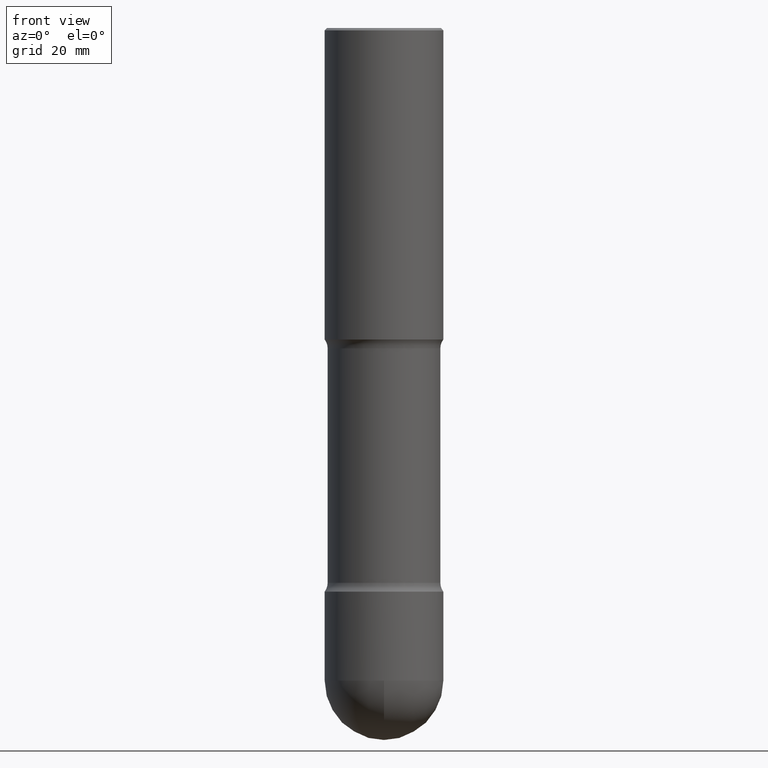
[diagram: clean part render]
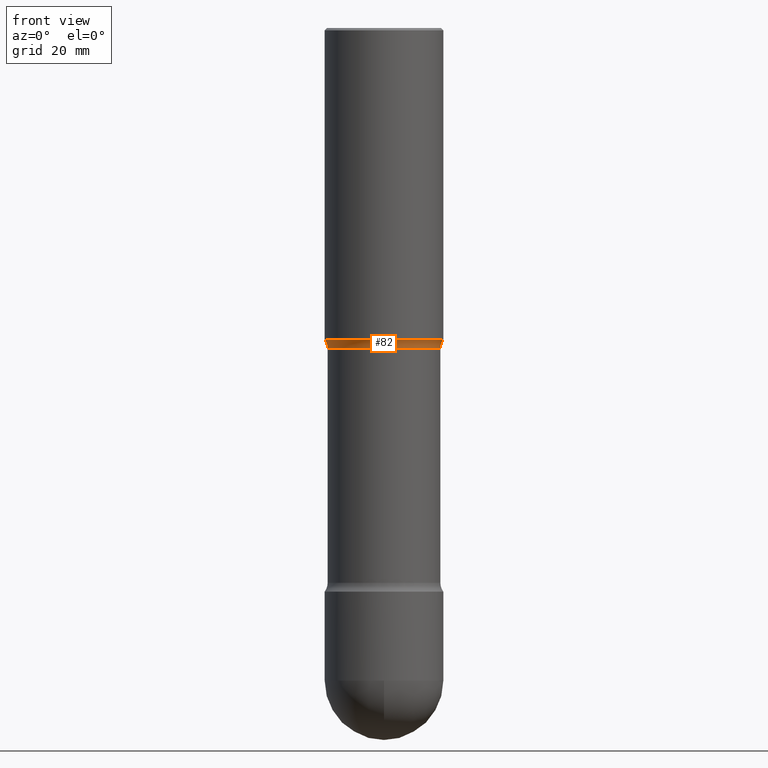
[diagram: same view with one face highlighted and labeled with its STEP entity id]
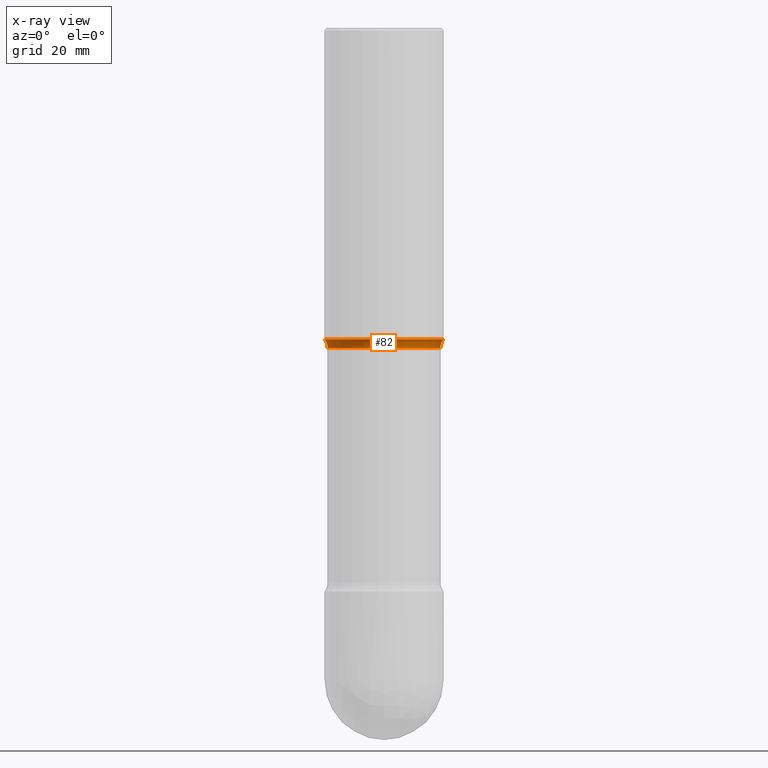
[diagram: x-ray of the same camera — body ghosted, the highlighted face saturated]
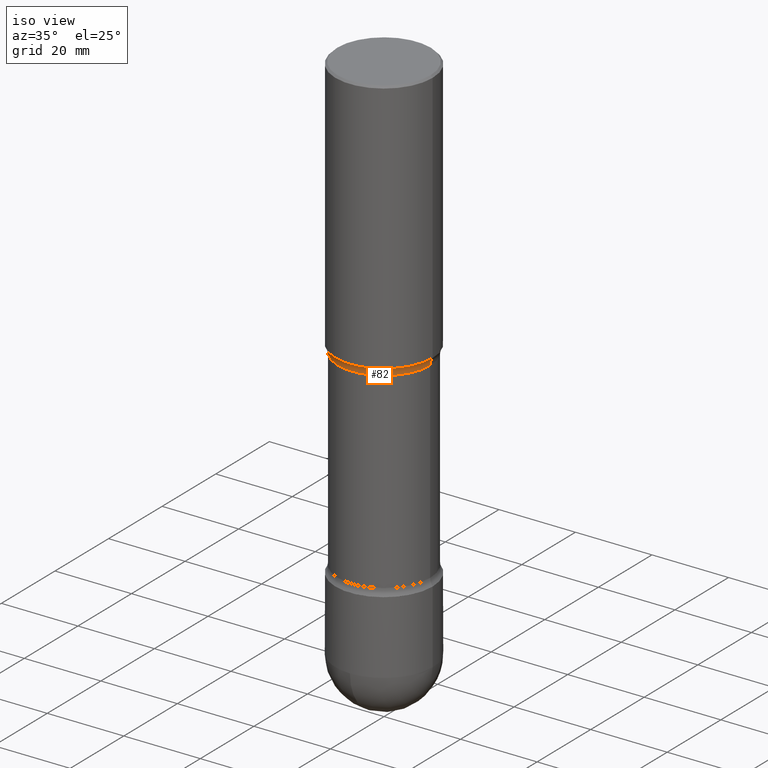
[diagram: same view with one face highlighted and labeled with its STEP entity id]
A machine part, front view. The second image highlights one B-rep face of the part: STEP entity #82.
The next image is the same camera in x-ray: the body ghosted, the highlighted face saturated — about 0% of this face is hidden behind the body in this view.
A second angle (iso view) of the same face is appended — the face is thin or edge-on in the first view.
In plain terms, the highlighted toroidal blend (fillet) surface has major radius 15.24 mm and minor (blend) radius 3.175 mm.
Its self-contained STEP definition (entity closure, byte-faithful):
#14 = CIRCLE ( 'NONE', #451, 0.1249999999999883565 ) ;
#19 = DIRECTION ( 'NONE',  ( -6.982962677686266711E-15, -1.000000000000000000, 3.491481338843145583E-15 ) ) ;
#35 = EDGE_CURVE ( 'NONE', #70, #428, #373, .T. ) ;
#54 = DIRECTION ( 'NONE',  ( -1.000000000000000000, 6.982962677686266711E-15, -4.883557194083113462E-29 ) ) ;
#70 = VERTEX_POINT ( 'NONE', #161 ) ;
#71 = CARTESIAN_POINT ( 'NONE',  ( 6.419355616235991414E-29, -9.165138514463269234E-15, -2.625000000000003109 ) ) ;
#82 = ADVANCED_FACE ( 'NONE', ( #107 ), #164, .F. ) ;
#105 = ORIENTED_EDGE ( 'NONE', *, *, #149, .T. ) ;
#107 = FACE_OUTER_BOUND ( 'NONE', #337, .T. ) ;
#110 = ORIENTED_EDGE ( 'NONE', *, *, #176, .T. ) ;
#114 = AXIS2_PLACEMENT_3D ( 'NONE', #226, #218, #294 ) ;
#135 = CIRCLE ( 'NONE', #489, 0.1249999999999883565 ) ;
#142 = CARTESIAN_POINT ( 'NONE',  ( -0.4749999999999993672, -6.110092342975520448E-15, -2.700000000000000178 ) ) ;
#149 = EDGE_CURVE ( 'NONE', #543, #248, #303, .T. ) ;
#155 = DIRECTION ( 'NONE',  ( -1.000000000000000000, 6.982962677686266711E-15, 0.000000000000000000 ) ) ;
#161 = CARTESIAN_POINT ( 'NONE',  ( 0.4749999999999993672, -1.264056183858350096E-14, -2.700000000000000178 ) ) ;
#164 = TOROIDAL_SURFACE ( 'NONE', #480, 0.5999999999999877653, 0.1249999999999883427 ) ;
#176 = EDGE_CURVE ( 'NONE', #70, #543, #14, .T. ) ;
#196 = CARTESIAN_POINT ( 'NONE',  ( 0.5000000000000000000, -8.047733069505829681E-15, -2.625000000000003109 ) ) ;
#213 = DIRECTION ( 'NONE',  ( 1.000000000000000000, -6.982962677686269077E-15, 0.000000000000000000 ) ) ;
#215 = CARTESIAN_POINT ( 'NONE',  ( 0.5999999999999877653, -1.354329841353932788E-14, -2.700000000000000178 ) ) ;
#218 = DIRECTION ( 'NONE',  ( 2.445468806185136597E-29, -3.491481338843145583E-15, -1.000000000000000000 ) ) ;
#226 = CARTESIAN_POINT ( 'NONE',  ( 6.602765776699870157E-29, -9.426999614876493191E-15, -2.700000000000000178 ) ) ;
#238 = ORIENTED_EDGE ( 'NONE', *, *, #342, .F. ) ;
#248 = VERTEX_POINT ( 'NONE', #490 ) ;
#274 = DIRECTION ( 'NONE',  ( 2.445468806185136597E-29, -3.491481338843145583E-15, -1.000000000000000000 ) ) ;
#290 = ORIENTED_EDGE ( 'NONE', *, *, #35, .F. ) ;
#294 = DIRECTION ( 'NONE',  ( -1.000000000000000000, 6.982962677686266711E-15, 0.000000000000000000 ) ) ;
#303 = CIRCLE ( 'NONE', #503, 0.5000000000000000000 ) ;
#337 = EDGE_LOOP ( 'NONE', ( #290, #110, #105, #238 ) ) ;
#341 = DIRECTION ( 'NONE',  ( 2.445468806185136597E-29, -3.491481338843145583E-15, -1.000000000000000000 ) ) ;
#342 = EDGE_CURVE ( 'NONE', #428, #248, #135, .T. ) ;
#373 = CIRCLE ( 'NONE', #114, 0.4749999999999993672 ) ;
#380 = CARTESIAN_POINT ( 'NONE',  ( -0.5999999999999877653, -5.237222008264818362E-15, -2.700000000000000178 ) ) ;
#428 = VERTEX_POINT ( 'NONE', #142 ) ;
#451 = AXIS2_PLACEMENT_3D ( 'NONE', #215, #559, #562 ) ;
#480 = AXIS2_PLACEMENT_3D ( 'NONE', #483, #274, #54 ) ;
#483 = CARTESIAN_POINT ( 'NONE',  ( 6.602765776699870157E-29, -9.426999614876493191E-15, -2.700000000000000178 ) ) ;
#489 = AXIS2_PLACEMENT_3D ( 'NONE', #380, #19, #213 ) ;
#490 = CARTESIAN_POINT ( 'NONE',  ( -0.5000000000000000000, -5.673657175620135090E-15, -2.625000000000003109 ) ) ;
#503 = AXIS2_PLACEMENT_3D ( 'NONE', #71, #341, #155 ) ;
#543 = VERTEX_POINT ( 'NONE', #196 ) ;
#559 = DIRECTION ( 'NONE',  ( 6.860497997771531562E-15, 1.000000000000000000, -3.491481338843145583E-15 ) ) ;
#562 = DIRECTION ( 'NONE',  ( -1.000000000000000000, 6.860497997771532351E-15, 0.000000000000000000 ) ) ;